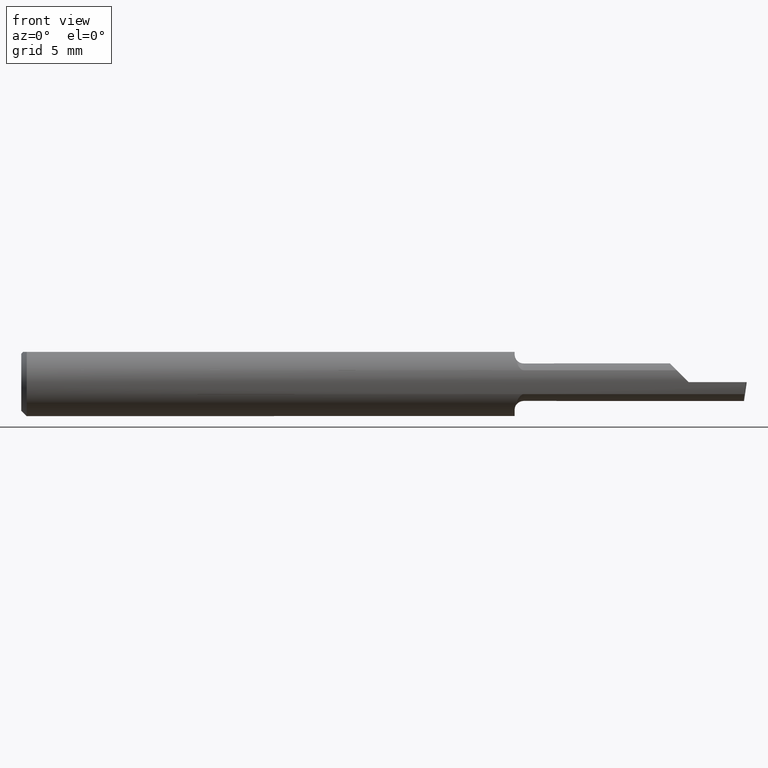
[diagram: clean part render]
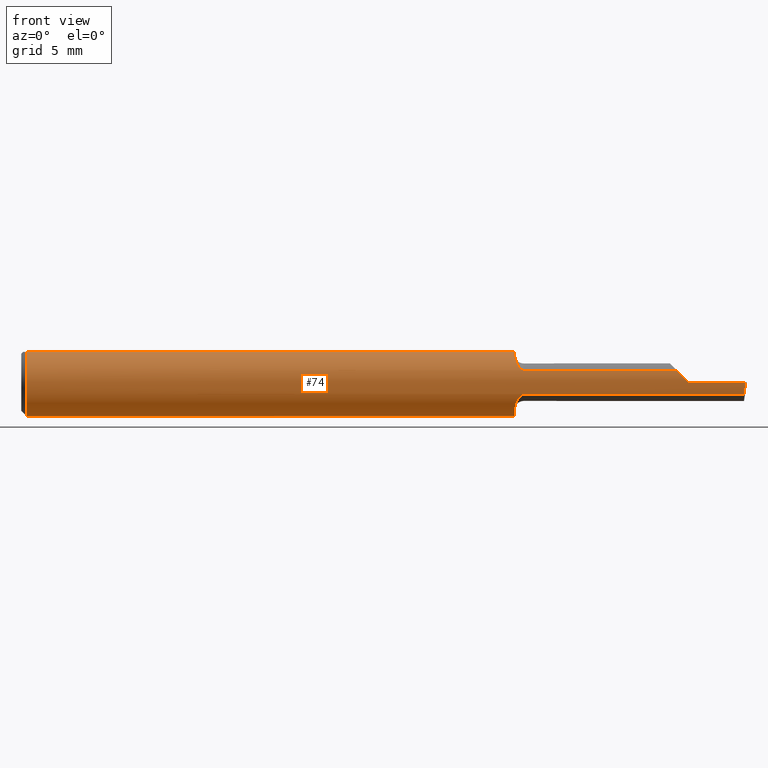
[diagram: same view with one face highlighted and labeled with its STEP entity id]
A machine part, front view. The second image highlights one B-rep face of the part: STEP entity #74.
In plain terms, the highlighted cylindrical surface (edge-blend (fillet) strip) has radius 2.3774 mm, axis along (-1, -0, -0).
Its self-contained STEP definition (entity closure, byte-faithful):
#1 = VERTEX_POINT ( 'NONE', #547 ) ;
#3 = VECTOR ( 'NONE', #59, 39.37007874015748143 ) ;
#4 = CARTESIAN_POINT ( 'NONE',  ( 1.996910061254836721, -0.09360000000000012754, -6.663204267364690931E-17 ) ) ;
#19 = CARTESIAN_POINT ( 'NONE',  ( 1.359999999999999876, -0.04209513035969843220, 0.08360000000000000764 ) ) ;
#21 = CARTESIAN_POINT ( 'NONE',  ( 5.659797890829555466E-31, -0.09359999999999998876, 1.030335658007946046E-15 ) ) ;
#32 = DIRECTION ( 'NONE',  ( 0.000000000000000000, 1.000000000000000000, 0.000000000000000000 ) ) ;
#34 = ORIENTED_EDGE ( 'NONE', *, *, #488, .T. ) ;
#36 = CARTESIAN_POINT ( 'NONE',  ( 1.360447921123109527, -0.06231628215915097774, 0.07004382716008764054 ) ) ;
#42 = CARTESIAN_POINT ( 'NONE',  ( 1.828723181872633941, -0.09360000000000001652, 0.01127681812736603534 ) ) ;
#45 = VERTEX_POINT ( 'NONE', #113 ) ;
#47 = CARTESIAN_POINT ( 'NONE',  ( 1.622500000000000053, -0.08761684210526321515, 0.03292793615611789432 ) ) ;
#49 = CIRCLE ( 'NONE', #306, 0.09360000000000001652 ) ;
#52 = VECTOR ( 'NONE', #233, 39.37007874015748143 ) ;
#54 = ORIENTED_EDGE ( 'NONE', *, *, #606, .T. ) ;
#59 = DIRECTION ( 'NONE',  ( -1.000000000000000000, -0.000000000000000000, -0.000000000000000000 ) ) ;
#67 = CARTESIAN_POINT ( 'NONE',  ( 0.000000000000000000, 0.04209513035969837669, 0.08360000000000000764 ) ) ;
#74 = ADVANCED_FACE ( 'NONE', ( #395 ), #504, .T. ) ;
#82 = CARTESIAN_POINT ( 'NONE',  ( 1.359999999999999876, 0.000000000000000000, 0.000000000000000000 ) ) ;
#84 = CARTESIAN_POINT ( 'NONE',  ( 1.360000000000000542, -0.06265771844804363111, -0.07038493979599889927 ) ) ;
#85 = CARTESIAN_POINT ( 'NONE',  ( 1.373927022897598604, -0.08480630317146348185, 0.03967462311308213307 ) ) ;
#87 = EDGE_CURVE ( 'NONE', #262, #445, #591, .T. ) ;
#90 = CARTESIAN_POINT ( 'NONE',  ( 1.369440191089343450, -0.08177118545005535033, -0.04577359403162513385 ) ) ;
#100 = ORIENTED_EDGE ( 'NONE', *, *, #527, .F. ) ;
#113 = CARTESIAN_POINT ( 'NONE',  ( 0.01499999999999999944, -0.04209513035969835587, 0.08360000000000000764 ) ) ;
#114 = DIRECTION ( 'NONE',  ( 0.000000000000000000, 0.000000000000000000, 1.000000000000000000 ) ) ;
#126 = LINE ( 'NONE', #67, #266 ) ;
#127 = B_SPLINE_CURVE_WITH_KNOTS ( 'NONE', 3,
 ( #140, #558, #36, #416, #177, #363, #420, #85, #600, #560, #506, #134 ),
 .UNSPECIFIED., .F., .F.,
 ( 4, 2, 2, 2, 2, 4 ),
 ( 1.138943784590769715E-05, 0.0004225593089546684123, 0.0008337291800634291867, 0.001244899051172189798, 0.001450483986726570267, 0.001656068922280950952 ),
 .UNSPECIFIED. ) ;
#134 = CARTESIAN_POINT ( 'NONE',  ( 1.384999999999999787, -0.08761684210526317351, 0.03292793615611790126 ) ) ;
#136 = CARTESIAN_POINT ( 'NONE',  ( 1.817628038131437584, -0.09158396120079809188, 0.02237196186856219363 ) ) ;
#140 = CARTESIAN_POINT ( 'NONE',  ( 1.359999999999999876, -0.05372210526315804313, 0.07664786628533222512 ) ) ;
#144 = CARTESIAN_POINT ( 'NONE',  ( 1.359999999999999876, -0.05372210526315804313, -0.07664786628533222512 ) ) ;
#151 = EDGE_CURVE ( 'NONE', #1, #220, #603, .T. ) ;
#152 = ORIENTED_EDGE ( 'NONE', *, *, #368, .F. ) ;
#157 = EDGE_CURVE ( 'NONE', #342, #458, #379, .T. ) ;
#161 = DIRECTION ( 'NONE',  ( 0.000000000000000000, 0.000000000000000000, 1.000000000000000000 ) ) ;
#172 = EDGE_CURVE ( 'NONE', #583, #567, #49, .T. ) ;
#173 = CARTESIAN_POINT ( 'NONE',  ( 1.384999999999999787, -0.08761684210526317351, -0.03292793615611790820 ) ) ;
#176 = AXIS2_PLACEMENT_3D ( 'NONE', #403, #596, #32 ) ;
#177 = CARTESIAN_POINT ( 'NONE',  ( 1.363573898438560805, -0.07331853621787791375, 0.05840549129485483881 ) ) ;
#182 = ORIENTED_EDGE ( 'NONE', *, *, #234, .T. ) ;
#183 = CARTESIAN_POINT ( 'NONE',  ( 1.359999999999999876, -0.05372210526315804313, -0.07664786628533222512 ) ) ;
#186 = AXIS2_PLACEMENT_3D ( 'NONE', #267, #391, #161 ) ;
#190 = CARTESIAN_POINT ( 'NONE',  ( 1.359999999999999876, -0.05372210526315804313, 0.07664786628533222512 ) ) ;
#194 =( BOUNDED_CURVE ( )  B_SPLINE_CURVE ( 3, ( #521, #42, #136, #366 ),
 .UNSPECIFIED., .F., .T. ) 
 B_SPLINE_CURVE_WITH_KNOTS ( ( 4, 4 ),
 ( 4.712388980384689674, 5.071876106261395734 ),
 .UNSPECIFIED. ) 
 CURVE ( )  GEOMETRIC_REPRESENTATION_ITEM ( )  RATIONAL_B_SPLINE_CURVE ( ( 1.000000000000000000, 0.9892597135044076673, 0.9892597135044076673, 1.000000000000000000 ) ) 
 REPRESENTATION_ITEM ( '' )  );
#208 = EDGE_CURVE ( 'NONE', #555, #487, #127, .T. ) ;
#209 = DIRECTION ( 'NONE',  ( -1.000000000000000000, -0.000000000000000000, -0.000000000000000000 ) ) ;
#210 = DIRECTION ( 'NONE',  ( -1.000000000000000000, -0.000000000000000000, -0.000000000000000000 ) ) ;
#214 = ORIENTED_EDGE ( 'NONE', *, *, #151, .F. ) ;
#215 = CARTESIAN_POINT ( 'NONE',  ( 1.996910061254836721, -0.09360000000000012754, -6.663204267364690931E-17 ) ) ;
#219 = DIRECTION ( 'NONE',  ( 0.000000000000000000, 0.000000000000000000, 1.000000000000000000 ) ) ;
#220 = VERTEX_POINT ( 'NONE', #328 ) ;
#224 = B_SPLINE_CURVE_WITH_KNOTS ( 'NONE', 3,
 ( #173, #568, #241, #229, #565, #90, #277, #333, #84, #144 ),
 .UNSPECIFIED., .F., .F.,
 ( 4, 2, 2, 2, 4 ),
 ( 1.963033868560647056E-07, 0.0002078258643200496373, 0.0004154554252532432221, 0.0008307145471196418843, 0.001661232790852446147 ),
 .UNSPECIFIED. ) ;
#227 = DIRECTION ( 'NONE',  ( -1.000000000000000000, 4.268512490100411279E-18, -0.000000000000000000 ) ) ;
#229 = CARTESIAN_POINT ( 'NONE',  ( 1.375623196656931446, -0.08570318752220022762, -0.03767279651384476680 ) ) ;
#233 = DIRECTION ( 'NONE',  ( 1.000000000000000000, -4.268512490100411279E-18, 0.000000000000000000 ) ) ;
#234 = EDGE_CURVE ( 'NONE', #342, #567, #126, .T. ) ;
#237 = CIRCLE ( 'NONE', #176, 0.09360000000000001652 ) ;
#240 = VERTEX_POINT ( 'NONE', #486 ) ;
#241 = CARTESIAN_POINT ( 'NONE',  ( 1.379715439975441882, -0.08710361937740859761, -0.03431086475148217158 ) ) ;
#255 = EDGE_CURVE ( 'NONE', #351, #45, #436, .T. ) ;
#262 = VERTEX_POINT ( 'NONE', #4 ) ;
#266 = VECTOR ( 'NONE', #300, 39.37007874015748143 ) ;
#267 = CARTESIAN_POINT ( 'NONE',  ( 0.000000000000000000, 0.000000000000000000, 0.000000000000000000 ) ) ;
#269 = CARTESIAN_POINT ( 'NONE',  ( 0.01499999999999999598, 0.000000000000000000, 0.000000000000000000 ) ) ;
#272 = CARTESIAN_POINT ( 'NONE',  ( 1.622500000000000053, -0.08761684210526321515, -0.03292793615611789432 ) ) ;
#277 = CARTESIAN_POINT ( 'NONE',  ( 1.367214764395544346, -0.07927709071642491390, -0.05002561729526815160 ) ) ;
#284 = CARTESIAN_POINT ( 'NONE',  ( 1.359999999999999876, 0.04209513035969836975, 0.08360000000000000764 ) ) ;
#290 = EDGE_LOOP ( 'NONE', ( #214, #34, #617, #54, #152, #455, #380, #329, #432, #338, #182, #424, #100 ) ) ;
#300 = DIRECTION ( 'NONE',  ( 1.000000000000000000, 0.000000000000000000, 0.000000000000000000 ) ) ;
#303 = CARTESIAN_POINT ( 'NONE',  ( 0.01499999999999999598, 0.04209513035969837669, 0.08360000000000000764 ) ) ;
#306 = AXIS2_PLACEMENT_3D ( 'NONE', #82, #320, #467 ) ;
#308 = CARTESIAN_POINT ( 'NONE',  ( 1.995524967455634791, -0.09360000000000001652, -0.01127681812736614810 ) ) ;
#320 = DIRECTION ( 'NONE',  ( 1.000000000000000000, -4.268512490100411279E-18, 0.000000000000000000 ) ) ;
#328 = CARTESIAN_POINT ( 'NONE',  ( 1.384999999999999787, -0.08761684210526317351, -0.03292793615611790820 ) ) ;
#329 = ORIENTED_EDGE ( 'NONE', *, *, #255, .T. ) ;
#333 = CARTESIAN_POINT ( 'NONE',  ( 1.361744805833127403, -0.07033817883199362797, -0.06260462116753086337 ) ) ;
#338 = ORIENTED_EDGE ( 'NONE', *, *, #157, .F. ) ;
#342 = VERTEX_POINT ( 'NONE', #303 ) ;
#351 = VERTEX_POINT ( 'NONE', #19 ) ;
#352 = CARTESIAN_POINT ( 'NONE',  ( 1.993022307651336700, -0.08761684210526321515, -0.03292793615611789432 ) ) ;
#355 = CARTESIAN_POINT ( 'NONE',  ( 0.01499999999999999598, 0.000000000000000000, -0.09360000000000001652 ) ) ;
#359 = EDGE_CURVE ( 'NONE', #458, #45, #499, .T. ) ;
#363 = CARTESIAN_POINT ( 'NONE',  ( 1.367170565689161732, -0.07921348361094633639, 0.05012018735743090092 ) ) ;
#366 = CARTESIAN_POINT ( 'NONE',  ( 1.807072063843881971, -0.08761684210526324290, 0.03292793615611787350 ) ) ;
#368 = EDGE_CURVE ( 'NONE', #487, #240, #476, .T. ) ;
#379 = CIRCLE ( 'NONE', #574, 0.09360000000000001652 ) ;
#380 = ORIENTED_EDGE ( 'NONE', *, *, #469, .F. ) ;
#391 = DIRECTION ( 'NONE',  ( -1.000000000000000000, -0.000000000000000000, -0.000000000000000000 ) ) ;
#395 = FACE_OUTER_BOUND ( 'NONE', #290, .T. ) ;
#399 =( BOUNDED_CURVE ( )  B_SPLINE_CURVE ( 3, ( #352, #457, #308, #215 ),
 .UNSPECIFIED., .F., .T. ) 
 B_SPLINE_CURVE_WITH_KNOTS ( ( 4, 4 ),
 ( 1.001259756638122722, 1.360746882514829226 ),
 .UNSPECIFIED. ) 
 CURVE ( )  GEOMETRIC_REPRESENTATION_ITEM ( )  RATIONAL_B_SPLINE_CURVE ( ( 1.000000000000000000, 0.9892597135044074452, 0.9892597135044074452, 1.000000000000000000 ) ) 
 REPRESENTATION_ITEM ( '' )  );
#403 = CARTESIAN_POINT ( 'NONE',  ( 1.359999999999999876, 0.000000000000000000, 0.000000000000000000 ) ) ;
#416 = CARTESIAN_POINT ( 'NONE',  ( 1.362226166028897456, -0.06987583889871340492, 0.06250459089996671103 ) ) ;
#420 = CARTESIAN_POINT ( 'NONE',  ( 1.369416114077285584, -0.08174975249068043570, 0.04581306663839094379 ) ) ;
#424 = ORIENTED_EDGE ( 'NONE', *, *, #172, .F. ) ;
#432 = ORIENTED_EDGE ( 'NONE', *, *, #359, .F. ) ;
#436 = LINE ( 'NONE', #492, #3 ) ;
#445 = VERTEX_POINT ( 'NONE', #500 ) ;
#452 = AXIS2_PLACEMENT_3D ( 'NONE', #545, #209, #114 ) ;
#455 = ORIENTED_EDGE ( 'NONE', *, *, #208, .F. ) ;
#457 = CARTESIAN_POINT ( 'NONE',  ( 1.994214979946649313, -0.09158396120079809188, -0.02237196186856231853 ) ) ;
#458 = VERTEX_POINT ( 'NONE', #355 ) ;
#464 = DIRECTION ( 'NONE',  ( -1.000000000000000000, -0.000000000000000000, -0.000000000000000000 ) ) ;
#467 = DIRECTION ( 'NONE',  ( 0.000000000000000000, 1.000000000000000000, 0.000000000000000000 ) ) ;
#469 = EDGE_CURVE ( 'NONE', #351, #555, #237, .T. ) ;
#476 = LINE ( 'NONE', #47, #52 ) ;
#486 = CARTESIAN_POINT ( 'NONE',  ( 1.807072063843881971, -0.08761684210526324290, 0.03292793615611787350 ) ) ;
#487 = VERTEX_POINT ( 'NONE', #559 ) ;
#488 = EDGE_CURVE ( 'NONE', #1, #262, #399, .T. ) ;
#492 = CARTESIAN_POINT ( 'NONE',  ( 0.000000000000000000, -0.04209513035969835587, 0.08360000000000000764 ) ) ;
#496 = VECTOR ( 'NONE', #227, 39.37007874015748143 ) ;
#499 = CIRCLE ( 'NONE', #452, 0.09360000000000001652 ) ;
#500 = CARTESIAN_POINT ( 'NONE',  ( 1.840000000000000080, -0.09360000000000005815, 1.959434878635762025E-17 ) ) ;
#504 = CYLINDRICAL_SURFACE ( 'NONE', #186, 0.09360000000000001652 ) ;
#506 = CARTESIAN_POINT ( 'NONE',  ( 1.382224490852163479, -0.08761684210526321515, 0.03292793615611788044 ) ) ;
#521 = CARTESIAN_POINT ( 'NONE',  ( 1.840000000000000080, -0.09360000000000005815, 1.959434878635762025E-17 ) ) ;
#526 = VECTOR ( 'NONE', #210, 39.37007874015748143 ) ;
#527 = EDGE_CURVE ( 'NONE', #220, #583, #224, .T. ) ;
#545 = CARTESIAN_POINT ( 'NONE',  ( 0.01499999999999999598, 0.000000000000000000, 0.000000000000000000 ) ) ;
#547 = CARTESIAN_POINT ( 'NONE',  ( 1.993022307651336700, -0.08761684210526321515, -0.03292793615611789432 ) ) ;
#555 = VERTEX_POINT ( 'NONE', #190 ) ;
#558 = CARTESIAN_POINT ( 'NONE',  ( 1.359999999999999876, -0.05819923687593508976, 0.07350986718065727343 ) ) ;
#559 = CARTESIAN_POINT ( 'NONE',  ( 1.384999999999999787, -0.08761684210526317351, 0.03292793615611790126 ) ) ;
#560 = CARTESIAN_POINT ( 'NONE',  ( 1.379688845260381935, -0.08709610918661535306, 0.03432955558035356847 ) ) ;
#565 = CARTESIAN_POINT ( 'NONE',  ( 1.373947372900657493, -0.08481750515389895051, -0.03965032143108265100 ) ) ;
#567 = VERTEX_POINT ( 'NONE', #284 ) ;
#568 = CARTESIAN_POINT ( 'NONE',  ( 1.382224155678839494, -0.08761684210526324290, -0.03292793615611791513 ) ) ;
#574 = AXIS2_PLACEMENT_3D ( 'NONE', #269, #464, #219 ) ;
#583 = VERTEX_POINT ( 'NONE', #183 ) ;
#591 = LINE ( 'NONE', #21, #526 ) ;
#596 = DIRECTION ( 'NONE',  ( 1.000000000000000000, -4.268512490100411279E-18, 0.000000000000000000 ) ) ;
#600 = CARTESIAN_POINT ( 'NONE',  ( 1.375620214409629893, -0.08570056439211902466, 0.03767842731144273316 ) ) ;
#603 = LINE ( 'NONE', #272, #496 ) ;
#606 = EDGE_CURVE ( 'NONE', #445, #240, #194, .T. ) ;
#617 = ORIENTED_EDGE ( 'NONE', *, *, #87, .T. ) ;